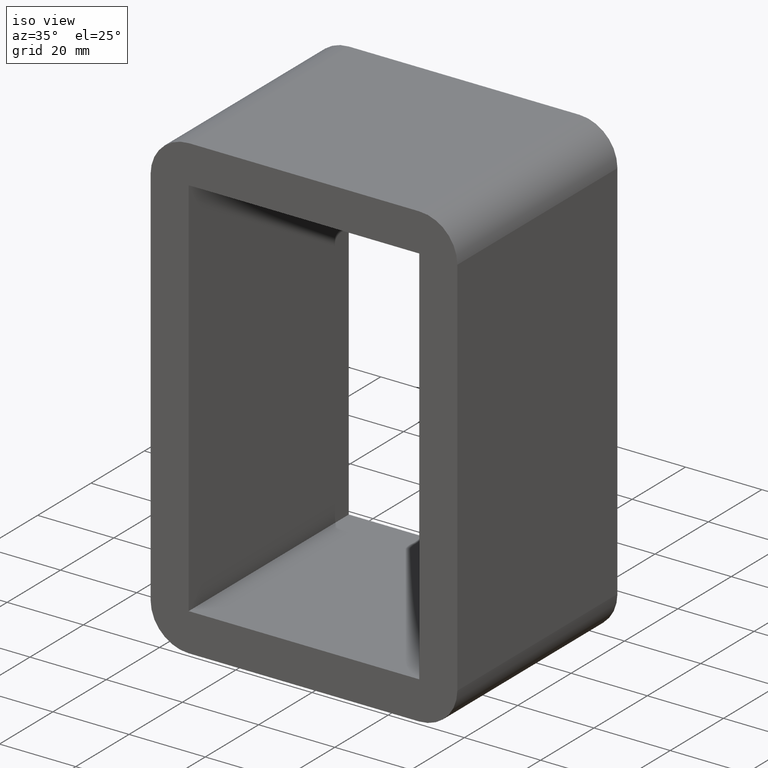
[diagram: clean part render]
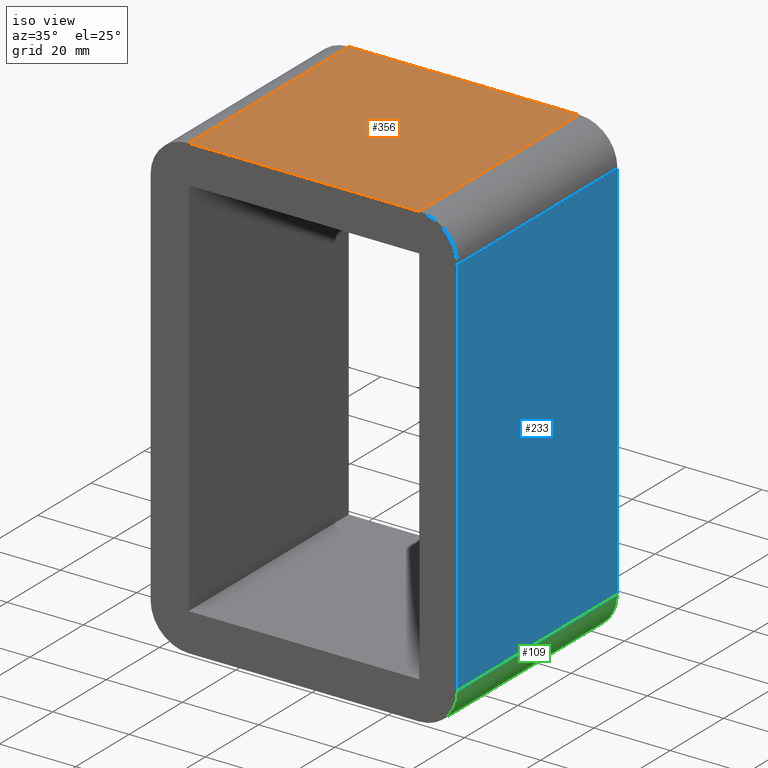
[diagram: same view with three faces highlighted in distinct colors, each labeled with its STEP entity id]
A machine part, iso view with three faces highlighted in distinct colors.
Their STEP definitions:

[orange] entity #356 — the highlighted planar face has unit normal (0, 0, 1).
#124=CARTESIAN_POINT('',(30.250000000000004,-3.0,60.500000000000007));
#125=VERTEX_POINT('',#124);
#133=CARTESIAN_POINT('',(-30.250000000000004,-3.0,60.500000000000007));
#134=VERTEX_POINT('',#133);
#135=CARTESIAN_POINT('',(30.25,-3.0,60.500000000000007));
#136=DIRECTION('',(-1.0,0.0,0.0));
#137=VECTOR('',#136,60.5);
#138=LINE('',#135,#137);
#139=EDGE_CURVE('',#125,#134,#138,.T.);
#241=CARTESIAN_POINT('',(30.250000000000004,57.0,60.500000000000007));
#242=VERTEX_POINT('',#241);
#250=CARTESIAN_POINT('',(30.250000000000004,57.0,60.500000000000007));
#251=DIRECTION('',(0.0,-1.0,0.0));
#252=VECTOR('',#251,60.0);
#253=LINE('',#250,#252);
#254=EDGE_CURVE('',#242,#125,#253,.T.);
#320=CARTESIAN_POINT('',(-30.250000000000004,57.0,60.500000000000007));
#321=VERTEX_POINT('',#320);
#331=CARTESIAN_POINT('',(-30.250000000000004,-3.0,60.500000000000007));
#332=DIRECTION('',(0.0,1.0,0.0));
#333=VECTOR('',#332,60.0);
#334=LINE('',#331,#333);
#335=EDGE_CURVE('',#134,#321,#334,.T.);
#340=CARTESIAN_POINT('',(-40.25,0.0,60.500000000000007));
#341=DIRECTION('',(0.0,0.0,1.0));
#342=DIRECTION('',(1.0,0.0,0.0));
#343=AXIS2_PLACEMENT_3D('',#340,#341,#342);
#344=PLANE('',#343);
#345=ORIENTED_EDGE('',*,*,#254,.F.);
#346=CARTESIAN_POINT('',(-30.25,57.0,60.500000000000007));
#347=DIRECTION('',(1.0,0.0,0.0));
#348=VECTOR('',#347,60.5);
#349=LINE('',#346,#348);
#350=EDGE_CURVE('',#321,#242,#349,.T.);
#351=ORIENTED_EDGE('',*,*,#350,.F.);
#352=ORIENTED_EDGE('',*,*,#335,.F.);
#353=ORIENTED_EDGE('',*,*,#139,.F.);
#354=EDGE_LOOP('',(#345,#351,#352,#353));
#355=FACE_OUTER_BOUND('',#354,.T.);
#356=ADVANCED_FACE('',(#355),#344,.T.);

[blue] entity #233 — the highlighted planar face has unit normal (1, 0, 0).
#75=CARTESIAN_POINT('',(40.25,57.0,-50.500000000000007));
#76=VERTEX_POINT('',#75);
#84=CARTESIAN_POINT('',(40.25,-3.0,-50.500000000000007));
#85=VERTEX_POINT('',#84);
#86=CARTESIAN_POINT('',(40.25,57.0,-50.500000000000007));
#87=DIRECTION('',(0.0,-1.0,0.0));
#88=VECTOR('',#87,60.0);
#89=LINE('',#86,#88);
#90=EDGE_CURVE('',#76,#85,#89,.T.);
#116=CARTESIAN_POINT('',(40.25,-3.0,50.500000000000007));
#117=VERTEX_POINT('',#116);
#118=CARTESIAN_POINT('',(40.25,-3.0,-50.500000000000007));
#119=DIRECTION('',(0.0,0.0,1.0));
#120=VECTOR('',#119,101.00000000000001);
#121=LINE('',#118,#120);
#122=EDGE_CURVE('',#85,#117,#121,.T.);
#210=CARTESIAN_POINT('',(40.25,0.0,60.500000000000007));
#211=DIRECTION('',(1.0,0.0,0.0));
#212=DIRECTION('',(0.0,0.0,-1.0));
#213=AXIS2_PLACEMENT_3D('',#210,#211,#212);
#214=PLANE('',#213);
#215=ORIENTED_EDGE('',*,*,#90,.F.);
#216=CARTESIAN_POINT('',(40.25,57.0,50.500000000000007));
#217=VERTEX_POINT('',#216);
#218=CARTESIAN_POINT('',(40.25,57.0,50.500000000000007));
#219=DIRECTION('',(0.0,0.0,-1.0));
#220=VECTOR('',#219,101.00000000000001);
#221=LINE('',#218,#220);
#222=EDGE_CURVE('',#217,#76,#221,.T.);
#223=ORIENTED_EDGE('',*,*,#222,.F.);
#224=CARTESIAN_POINT('',(40.25,-3.0,50.500000000000007));
#225=DIRECTION('',(0.0,1.0,0.0));
#226=VECTOR('',#225,60.0);
#227=LINE('',#224,#226);
#228=EDGE_CURVE('',#117,#217,#227,.T.);
#229=ORIENTED_EDGE('',*,*,#228,.F.);
#230=ORIENTED_EDGE('',*,*,#122,.F.);
#231=EDGE_LOOP('',(#215,#223,#229,#230));
#232=FACE_OUTER_BOUND('',#231,.T.);
#233=ADVANCED_FACE('',(#232),#214,.T.);

[green] entity #109 — the highlighted cylindrical surface (partial cylindrical patch) has radius 10 mm, axis along (0, 1, 0).
#68=CARTESIAN_POINT('',(30.250000000000004,0.0,-50.500000000000007));
#69=DIRECTION('',(0.0,1.0,0.0));
#70=DIRECTION('',(0.707106781186547,0.0,-0.707106781186547));
#71=AXIS2_PLACEMENT_3D('',#68,#69,#70);
#72=CYLINDRICAL_SURFACE('',#71,10.0);
#73=CARTESIAN_POINT('',(30.250000000000004,57.0,-60.500000000000007));
#74=VERTEX_POINT('',#73);
#75=CARTESIAN_POINT('',(40.25,57.0,-50.500000000000007));
#76=VERTEX_POINT('',#75);
#77=CARTESIAN_POINT('',(30.250000000000004,57.0,-50.500000000000007));
#78=DIRECTION('',(0.0,-1.0,0.0));
#79=DIRECTION('',(0.707106781186547,0.0,-0.707106781186547));
#80=AXIS2_PLACEMENT_3D('',#77,#78,#79);
#81=CIRCLE('',#80,9.999999999999998);
#82=EDGE_CURVE('',#74,#76,#81,.T.);
#83=ORIENTED_EDGE('',*,*,#82,.T.);
#84=CARTESIAN_POINT('',(40.25,-3.0,-50.500000000000007));
#85=VERTEX_POINT('',#84);
#86=CARTESIAN_POINT('',(40.25,57.0,-50.500000000000007));
#87=DIRECTION('',(0.0,-1.0,0.0));
#88=VECTOR('',#87,60.0);
#89=LINE('',#86,#88);
#90=EDGE_CURVE('',#76,#85,#89,.T.);
#91=ORIENTED_EDGE('',*,*,#90,.T.);
#92=CARTESIAN_POINT('',(30.250000000000004,-3.0,-60.500000000000007));
#93=VERTEX_POINT('',#92);
#94=CARTESIAN_POINT('',(30.250000000000004,-3.0,-50.500000000000007));
#95=DIRECTION('',(0.0,1.0,0.0));
#96=DIRECTION('',(0.707106781186547,0.0,-0.707106781186547));
#97=AXIS2_PLACEMENT_3D('',#94,#95,#96);
#98=CIRCLE('',#97,9.999999999999998);
#99=EDGE_CURVE('',#85,#93,#98,.T.);
#100=ORIENTED_EDGE('',*,*,#99,.T.);
#101=CARTESIAN_POINT('',(30.250000000000004,-3.0,-60.500000000000007));
#102=DIRECTION('',(0.0,1.0,0.0));
#103=VECTOR('',#102,60.0);
#104=LINE('',#101,#103);
#105=EDGE_CURVE('',#93,#74,#104,.T.);
#106=ORIENTED_EDGE('',*,*,#105,.T.);
#107=EDGE_LOOP('',(#83,#91,#100,#106));
#108=FACE_OUTER_BOUND('',#107,.T.);
#109=ADVANCED_FACE('',(#108),#72,.T.);